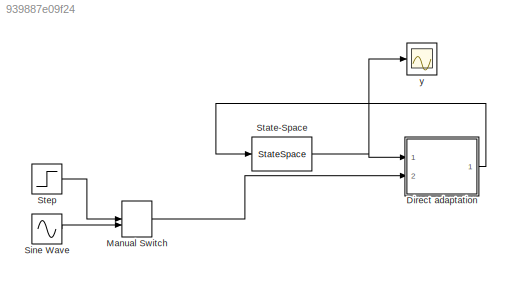
MODEL slx_939887e09f24
KIND model
CONFIG AbsTol = auto
CONFIG EnableMultiTasking = off
CONFIG FixedStep = auto
CONFIG MaxStep = auto
CONFIG MinStep = auto
CONFIG RelTol = 1e-3
CONFIG SampleTimeConstraint = Unconstrained
CONFIG Solver = VariableStepAuto
CONFIG SolverName = VariableStepAuto
CONFIG StartTime = 0.0
CONFIG StopTime = 50.0
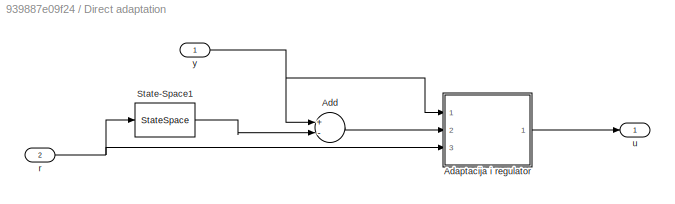
BLOCK [SubSystem] Direct adaptation
  Ports = [2, 1]
  RequestExecContextInheritance = off
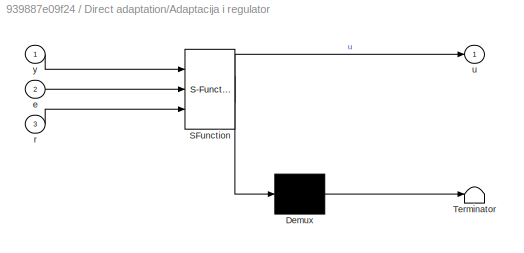
BLOCK [SubSystem] Direct adaptation/Adaptacija i regulator
  ErrorFcn = Stateflow.Translate.translate
  PermitHierarchicalResolution = ExplicitOnly
  Ports = [3, 1]
  RequestExecContextInheritance = off
  SFBlockType = MATLAB Function
  TreatAsAtomicUnit = on
BLOCK [Demux] Direct adaptation/Adaptacija i regulator/ Demux 
  Outputs = 1
  Ports = [1, 1]
BLOCK [S-Function] Direct adaptation/Adaptacija i regulator/ SFunction 
  EnableBusSupport = on
  FunctionName = sf_sfun
  Parameters = T
  PortCounts = [3 2]
  Ports = [3, 2]
  SFcnIsStateOwnerBlock = off
  SFunctionDeploymentMode = off
  Tag = Stateflow S-Function homework7slx 2
BLOCK [Terminator] Direct adaptation/Adaptacija i regulator/ Terminator 
BLOCK [Inport] Direct adaptation/Adaptacija i regulator/e
  IconDisplay = Port number
  Port = 2
BLOCK [Inport] Direct adaptation/Adaptacija i regulator/r
  IconDisplay = Port number
  Port = 3
BLOCK [Outport] Direct adaptation/Adaptacija i regulator/u
  IconDisplay = Port number
BLOCK [Inport] Direct adaptation/Adaptacija i regulator/y
  IconDisplay = Port number
BLOCK [Sum] Direct adaptation/Add
  InputSameDT = off
  Inputs = +-
  OutDataTypeStr = Inherit: Inherit via internal rule
  Ports = [2, 1]
  SaturateOnIntegerOverflow = off
BLOCK [StateSpace] Direct adaptation/State-Space1
  A = -2
  B = 2
  D = 0
  InitialCondition = 0
  Ports = [1, 1]
BLOCK [Inport] Direct adaptation/r
  IconDisplay = Port number
  Port = 2
BLOCK [Outport] Direct adaptation/u
  IconDisplay = Port number
BLOCK [Inport] Direct adaptation/y
  IconDisplay = Port number
BLOCK [ManualSwitch] Manual Switch
BLOCK [Sin] Sine Wave
  Ports = [0, 1]
  SampleTime = 0
BLOCK [StateSpace] State-Space
  A = -3
  D = 0
  InitialCondition = 0
  Ports = [1, 1]
BLOCK [Step] Step
  SampleTime = 0
BLOCK [Scope] y
  Floating = off
  NumInputPorts = 1
  Ports = [1]
  ScopeSpecificationString = Simulink.scopes.TimeScopeBlockCfg('CurrentConfiguration', extmgr.ConfigurationSet(extmgr.Configuration('Core','General UI',true),extmgr.Configuration('Core','Source UI',true),extmgr.Configuration('Sources','WiredSimulink',true),extmgr.Configuration('Visuals','Time Domain',true,'SerializedDisplays',{struct('MinYLimReal','-0.12538','MaxYLimReal','1.12839','YLabelReal','','MinYLimMag','0.00000','MaxY...<+1360ch>
LINE Direct adaptation/Adaptacija i regulator:1 -> Direct adaptation/u:1
LINE Direct adaptation/Add:1 -> Direct adaptation/Adaptacija i regulator:2
LINE Direct adaptation/State-Space1:1 -> Direct adaptation/Add:2
NET Direct adaptation/r:1 -> Direct adaptation/Adaptacija i regulator:3, Direct adaptation/State-Space1:1
NET Direct adaptation/y:1 -> Direct adaptation/Adaptacija i regulator:1, Direct adaptation/Add:1
LINE Direct adaptation:1 -> State-Space:1
LINE Manual Switch:1 -> Direct adaptation:2
LINE Sine Wave:1 -> Manual Switch:2
NET State-Space:1 -> Direct adaptation:1, y:1
LINE Step:1 -> Manual Switch:1
note: NET lines group one-source signal fan-out (src -> all destinations, sorted); 1:1 wires keep LINE
CHART Direct adaptation/Adaptacija i regulator states=1 transitions=1
  STATE_LABEL 'eML_blk_kernel()'
  STATE_LABEL 'SCRIPT:\nfunction u = adapAndRegulator(y,e,r,T)\npersistent k_p;\npersistent kr_p;\n\nif isempty(k_p)\n    k_p=0;\n    kr_p=0;\nend\n\nk=k_p+T*y*e;\nkr=kr_p-T*r*e;\nk_p=k;\nkr_p=kr;\n\nu=-k*y+kr*r;\nend'
